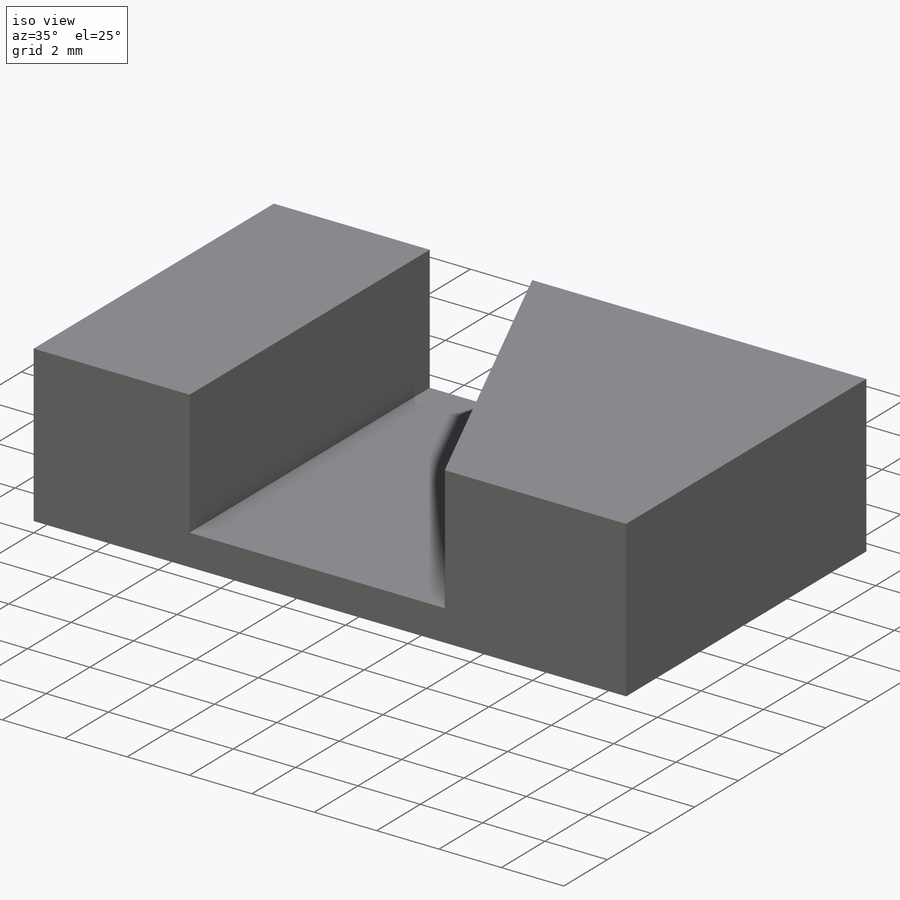
[diagram: iso view]
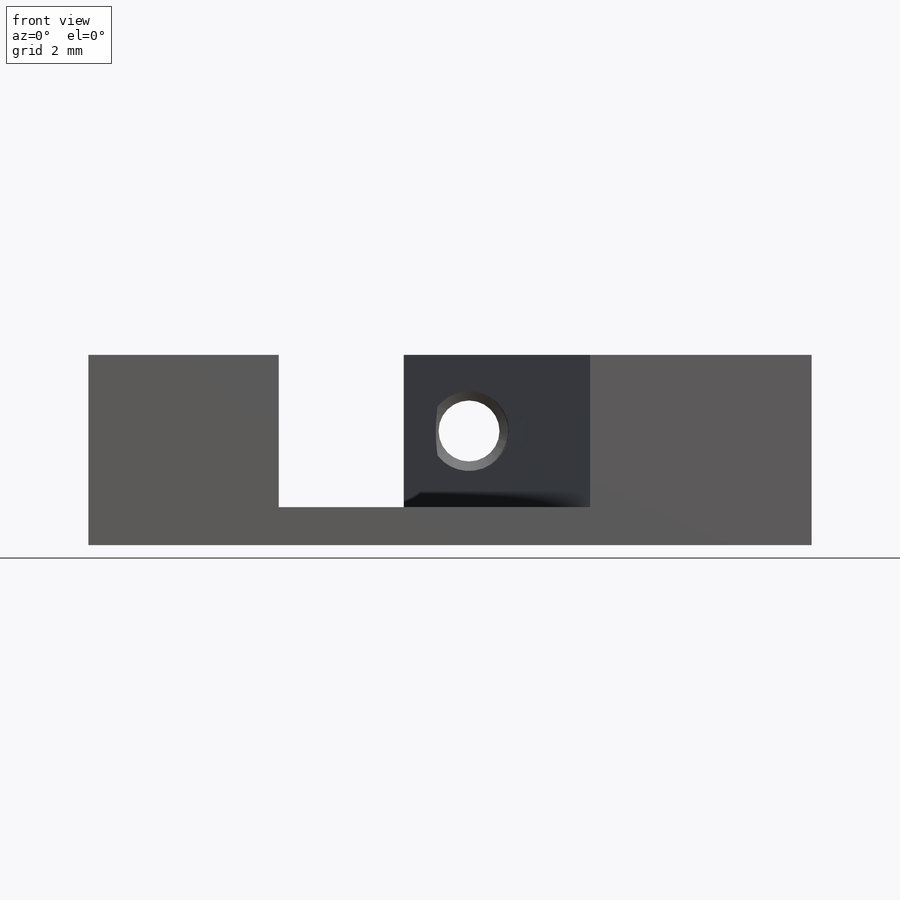
[diagram: front view]
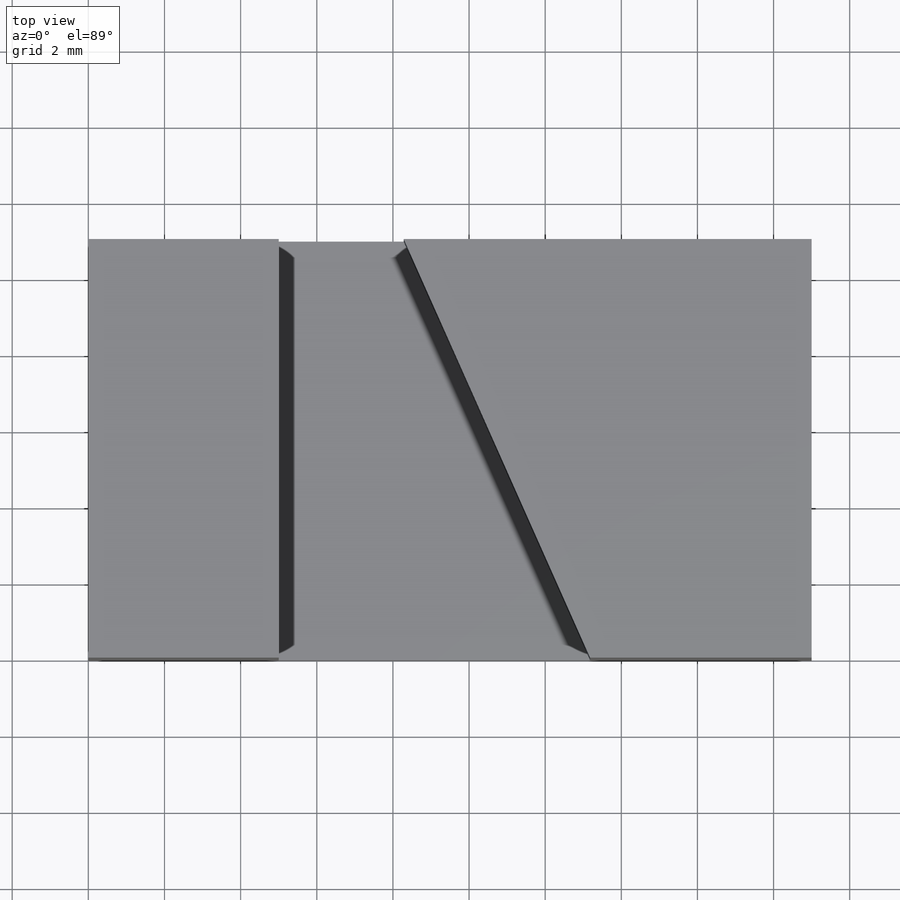
[diagram: top view]
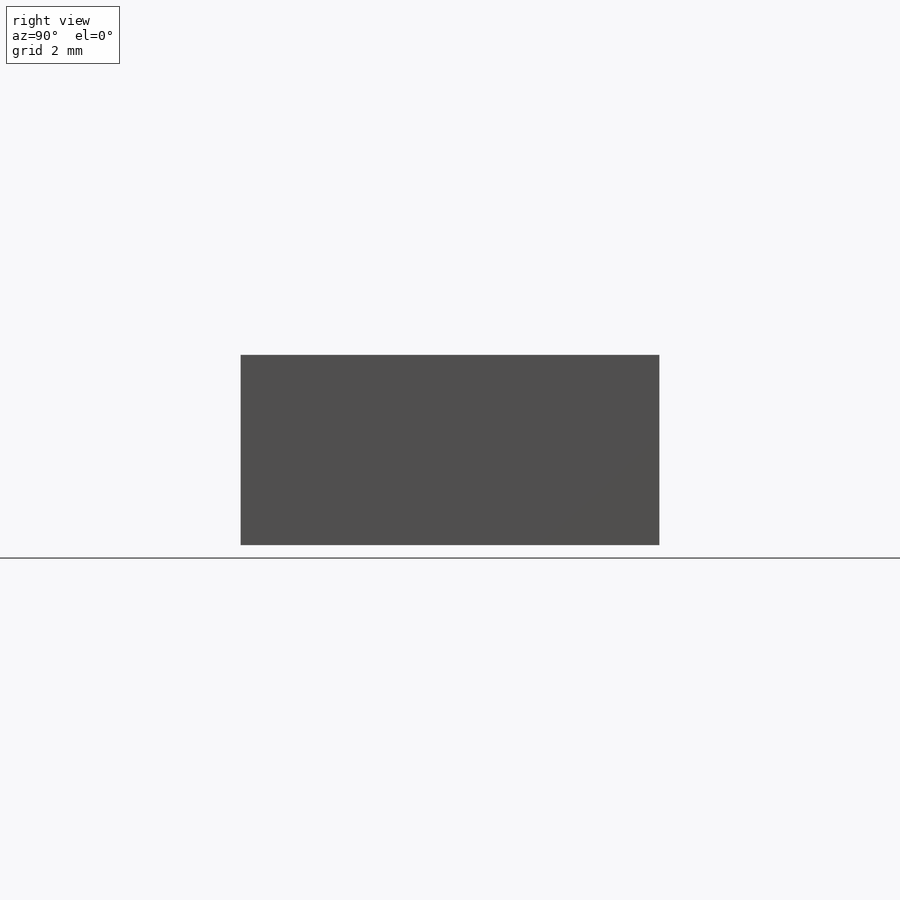
[diagram: right view]
SOLIDWORKS PART (.sldprt)
format: sldprt  version: not decoded by parser v0  size: 202,240 bytes
history: native  units: mm
features: sketch x6, plane x3, hole x2, material x1, extrude x1, thread x1, cut_extrude x1 (+13 scaffold rows collapsed)
feature tree (28):
  scaffold x13  (default folders/planes/origin — collapsed)
  material  "Материал <не указан>"
  plane  "Спереди"
  plane  "Сверху"
  plane  "Справа"
  sketch  "Эскиз3"  dims[D1=19.0mm D2=12.0mm]
  extrude  "Бобышка-Вытянуть1"  Depth=5mm
  hole  "Отверстие обработанное метчиком M2x0.42"  [1 undecoded]
  sketch  "Эскиз9"  dims[D1=2.0mm D2=12.0mm]
  sketch  "Эскиз8"  dims[hole-wizard template sketch: 47 standard entries collapsed; hole parameters kept: c15.Глубина проходного сверла=12.0mm c15.Диаметр передней зенковки=2.05mm c15.D4=~3.666174mm c15.Угол передней зенковки=110.0deg c15.Диаметр задней зенковки=2.05mm c15.D6=~9.919017mm c15.Угол задней зенковки=110.0deg]
  thread  "Отверстие резьбы2"  Diameter=2mm  [1 undecoded]
  hole  "Отверстие с зазором M23"  [1 undecoded]
  sketch  "Эскиз11"
  sketch  "Эскиз10"  dims[hole-wizard template sketch: 46 standard entries collapsed; hole parameters kept: c15.Диаметр отверстия=2.1mm c15.Глубина отверстия=8.0mm c15.D3=~14.816244mm c15.Угол заточки сверла=118.0deg]
  sketch  "Эскиз4"  dims[c1.D4=1.5mm c1.D6=1.5mm c1.D1=5.0mm c1.D2=11.0mm c2.D2=24.0deg c2.D3=4.0mm c2.D5=3.5mm c2.D6=8.0mm c2.D7=7.0mm]
  cut_extrude  "Вырез-Вытянуть1"  Depth=4mm
decode coverage: 8 of 11 modeling features carry decoded parameters
note: ~ marks probable driven/reference dimensions
note: 3 parameter values undecoded
note: suppression state not decoded; provenance and decode notes live in map.json
